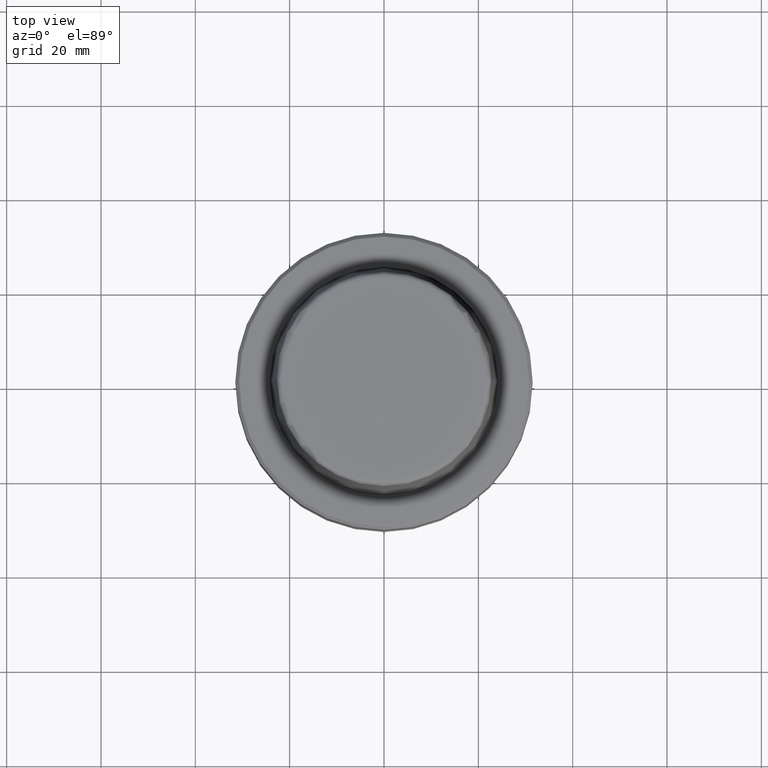
[diagram: clean part render]
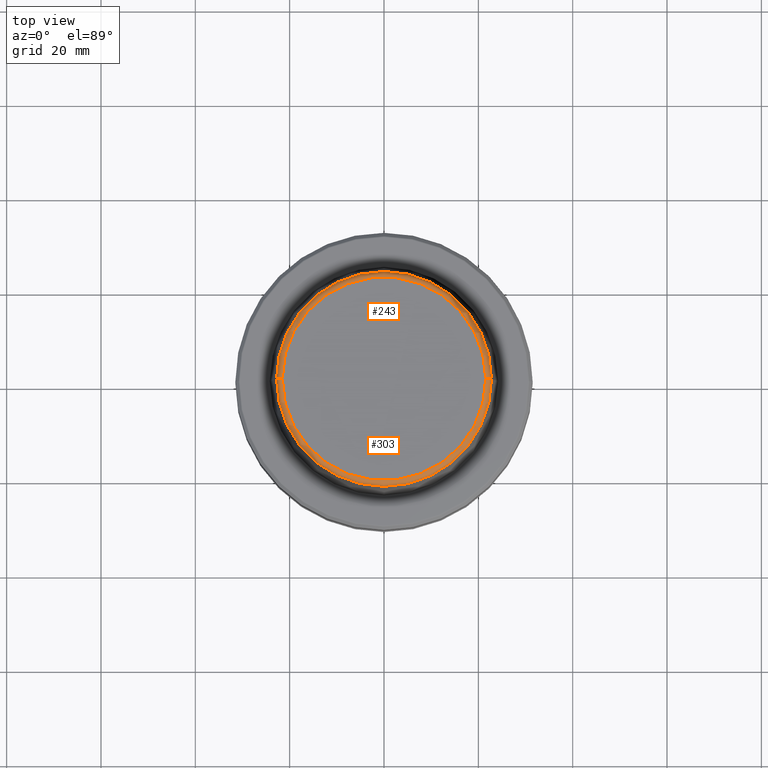
[diagram: same view with one multi-face feature highlighted, each face labeled with its STEP entity id]
A machine part, top view. The highlighted faces form ONE feature: a constant-radius fillet chain: 2 tangent blend faces with common blend radius 1.2 mm. The faces share edges in the B-rep.
Their STEP definitions:
[1] entity #303 (Torus):
#4 = AXIS2_PLACEMENT_3D ( 'NONE', #1237, #688, #782 ) ;
#75 = ORIENTED_EDGE ( 'NONE', *, *, #80, .F. ) ;
#80 = EDGE_CURVE ( 'NONE', #891, #992, #477, .T. ) ;
#100 = CARTESIAN_POINT ( 'NONE',  ( -21.58108272732117100, 2.716307157494421400E-015, 31.89999999999999900 ) ) ;
#115 = AXIS2_PLACEMENT_3D ( 'NONE', #993, #424, #253 ) ;
#138 = ORIENTED_EDGE ( 'NONE', *, *, #559, .F. ) ;
#173 = VERTEX_POINT ( 'NONE', #813 ) ;
#237 = CARTESIAN_POINT ( 'NONE',  ( -22.77957961851797100, 0.0000000000000000000, 30.76004333261571900 ) ) ;
#253 = DIRECTION ( 'NONE',  ( -1.000000000000000000, 1.224646799147353200E-016, 0.0000000000000000000 ) ) ;
#268 = CIRCLE ( 'NONE', #867, 22.77957961851797100 ) ;
#303 = ADVANCED_FACE ( 'NONE', ( #864 ), #1001, .T. ) ;
#370 = EDGE_LOOP ( 'NONE', ( #138, #1098, #586, #75 ) ) ;
#402 = DIRECTION ( 'NONE',  ( 0.0000000000000000000, -1.000000000000000000, 0.0000000000000000000 ) ) ;
#417 = CARTESIAN_POINT ( 'NONE',  ( 21.58108272732117100, 0.0000000000000000000, 31.89999999999999900 ) ) ;
#424 = DIRECTION ( 'NONE',  ( 1.224646799147353200E-016, 1.000000000000000000, 0.0000000000000000000 ) ) ;
#435 = CARTESIAN_POINT ( 'NONE',  ( 0.0000000000000000000, 0.0000000000000000000, 30.76004333261571900 ) ) ;
#477 = CIRCLE ( 'NONE', #1236, 21.58108272732117100 ) ;
#538 = CIRCLE ( 'NONE', #955, 1.200000000000003100 ) ;
#539 = DIRECTION ( 'NONE',  ( 1.000000000000000000, 0.0000000000000000000, 0.0000000000000000000 ) ) ;
#559 = EDGE_CURVE ( 'NONE', #708, #891, #801, .T. ) ;
#581 = DIRECTION ( 'NONE',  ( -0.0000000000000000000, -0.0000000000000000000, 1.000000000000000000 ) ) ;
#586 = ORIENTED_EDGE ( 'NONE', *, *, #911, .T. ) ;
#611 = DIRECTION ( 'NONE',  ( 1.000000000000000000, 0.0000000000000000000, 0.0000000000000000000 ) ) ;
#688 = DIRECTION ( 'NONE',  ( -0.0000000000000000000, -0.0000000000000000000, 1.000000000000000000 ) ) ;
#708 = VERTEX_POINT ( 'NONE', #237 ) ;
#713 = EDGE_CURVE ( 'NONE', #708, #173, #268, .T. ) ;
#782 = DIRECTION ( 'NONE',  ( 1.000000000000000000, 0.0000000000000000000, 0.0000000000000000000 ) ) ;
#801 = CIRCLE ( 'NONE', #115, 1.200000000000003100 ) ;
#813 = CARTESIAN_POINT ( 'NONE',  ( 22.77957961851797100, 2.876386432489616700E-015, 30.76004333261571900 ) ) ;
#864 = FACE_OUTER_BOUND ( 'NONE', #370, .T. ) ;
#867 = AXIS2_PLACEMENT_3D ( 'NONE', #435, #1078, #539 ) ;
#891 = VERTEX_POINT ( 'NONE', #100 ) ;
#911 = EDGE_CURVE ( 'NONE', #173, #992, #538, .T. ) ;
#955 = AXIS2_PLACEMENT_3D ( 'NONE', #978, #402, #1048 ) ;
#978 = CARTESIAN_POINT ( 'NONE',  ( 21.58108272732117100, 0.0000000000000000000, 30.69999999999999200 ) ) ;
#992 = VERTEX_POINT ( 'NONE', #417 ) ;
#993 = CARTESIAN_POINT ( 'NONE',  ( -21.58108272732117100, 2.642920388414810300E-015, 30.69999999999999200 ) ) ;
#1001 = TOROIDAL_SURFACE ( 'NONE', #4, 21.58108272732117100, 1.200000000000003100 ) ;
#1048 = DIRECTION ( 'NONE',  ( 0.0000000000000000000, 0.0000000000000000000, -1.000000000000000000 ) ) ;
#1078 = DIRECTION ( 'NONE',  ( -0.0000000000000000000, -0.0000000000000000000, 1.000000000000000000 ) ) ;
#1098 = ORIENTED_EDGE ( 'NONE', *, *, #713, .T. ) ;
#1124 = CARTESIAN_POINT ( 'NONE',  ( 0.0000000000000000000, 0.0000000000000000000, 31.89999999999999900 ) ) ;
#1236 = AXIS2_PLACEMENT_3D ( 'NONE', #1124, #581, #611 ) ;
#1237 = CARTESIAN_POINT ( 'NONE',  ( 0.0000000000000000000, 0.0000000000000000000, 30.69999999999999200 ) ) ;
[2] entity #243 (Torus):
#22 = ORIENTED_EDGE ( 'NONE', *, *, #911, .F. ) ;
#58 = CIRCLE ( 'NONE', #655, 22.77957961851797100 ) ;
#87 = CARTESIAN_POINT ( 'NONE',  ( 0.0000000000000000000, 0.0000000000000000000, 31.89999999999999900 ) ) ;
#100 = CARTESIAN_POINT ( 'NONE',  ( -21.58108272732117100, 2.716307157494421400E-015, 31.89999999999999900 ) ) ;
#115 = AXIS2_PLACEMENT_3D ( 'NONE', #993, #424, #253 ) ;
#173 = VERTEX_POINT ( 'NONE', #813 ) ;
#177 = EDGE_CURVE ( 'NONE', #173, #708, #58, .T. ) ;
#195 = DIRECTION ( 'NONE',  ( 1.000000000000000000, 0.0000000000000000000, 0.0000000000000000000 ) ) ;
#237 = CARTESIAN_POINT ( 'NONE',  ( -22.77957961851797100, 0.0000000000000000000, 30.76004333261571900 ) ) ;
#243 = ADVANCED_FACE ( 'NONE', ( #472 ), #833, .T. ) ;
#253 = DIRECTION ( 'NONE',  ( -1.000000000000000000, 1.224646799147353200E-016, 0.0000000000000000000 ) ) ;
#333 = EDGE_LOOP ( 'NONE', ( #347, #1184, #1195, #22 ) ) ;
#347 = ORIENTED_EDGE ( 'NONE', *, *, #177, .T. ) ;
#402 = DIRECTION ( 'NONE',  ( 0.0000000000000000000, -1.000000000000000000, 0.0000000000000000000 ) ) ;
#417 = CARTESIAN_POINT ( 'NONE',  ( 21.58108272732117100, 0.0000000000000000000, 31.89999999999999900 ) ) ;
#424 = DIRECTION ( 'NONE',  ( 1.224646799147353200E-016, 1.000000000000000000, 0.0000000000000000000 ) ) ;
#428 = AXIS2_PLACEMENT_3D ( 'NONE', #87, #798, #195 ) ;
#464 = DIRECTION ( 'NONE',  ( 1.000000000000000000, 0.0000000000000000000, 0.0000000000000000000 ) ) ;
#472 = FACE_OUTER_BOUND ( 'NONE', #333, .T. ) ;
#538 = CIRCLE ( 'NONE', #955, 1.200000000000003100 ) ;
#551 = CARTESIAN_POINT ( 'NONE',  ( 0.0000000000000000000, 0.0000000000000000000, 30.76004333261571900 ) ) ;
#559 = EDGE_CURVE ( 'NONE', #708, #891, #801, .T. ) ;
#655 = AXIS2_PLACEMENT_3D ( 'NONE', #551, #1210, #664 ) ;
#664 = DIRECTION ( 'NONE',  ( 1.000000000000000000, 0.0000000000000000000, 0.0000000000000000000 ) ) ;
#708 = VERTEX_POINT ( 'NONE', #237 ) ;
#798 = DIRECTION ( 'NONE',  ( -0.0000000000000000000, -0.0000000000000000000, 1.000000000000000000 ) ) ;
#801 = CIRCLE ( 'NONE', #115, 1.200000000000003100 ) ;
#813 = CARTESIAN_POINT ( 'NONE',  ( 22.77957961851797100, 2.876386432489616700E-015, 30.76004333261571900 ) ) ;
#829 = EDGE_CURVE ( 'NONE', #992, #891, #1014, .T. ) ;
#833 = TOROIDAL_SURFACE ( 'NONE', #1134, 21.58108272732117100, 1.200000000000003100 ) ;
#891 = VERTEX_POINT ( 'NONE', #100 ) ;
#911 = EDGE_CURVE ( 'NONE', #173, #992, #538, .T. ) ;
#955 = AXIS2_PLACEMENT_3D ( 'NONE', #978, #402, #1048 ) ;
#978 = CARTESIAN_POINT ( 'NONE',  ( 21.58108272732117100, 0.0000000000000000000, 30.69999999999999200 ) ) ;
#992 = VERTEX_POINT ( 'NONE', #417 ) ;
#993 = CARTESIAN_POINT ( 'NONE',  ( -21.58108272732117100, 2.642920388414810300E-015, 30.69999999999999200 ) ) ;
#1014 = CIRCLE ( 'NONE', #428, 21.58108272732117100 ) ;
#1019 = CARTESIAN_POINT ( 'NONE',  ( 0.0000000000000000000, 0.0000000000000000000, 30.69999999999999200 ) ) ;
#1024 = DIRECTION ( 'NONE',  ( -0.0000000000000000000, -0.0000000000000000000, 1.000000000000000000 ) ) ;
#1048 = DIRECTION ( 'NONE',  ( 0.0000000000000000000, 0.0000000000000000000, -1.000000000000000000 ) ) ;
#1134 = AXIS2_PLACEMENT_3D ( 'NONE', #1019, #1024, #464 ) ;
#1184 = ORIENTED_EDGE ( 'NONE', *, *, #559, .T. ) ;
#1195 = ORIENTED_EDGE ( 'NONE', *, *, #829, .F. ) ;
#1210 = DIRECTION ( 'NONE',  ( -0.0000000000000000000, -0.0000000000000000000, 1.000000000000000000 ) ) ;